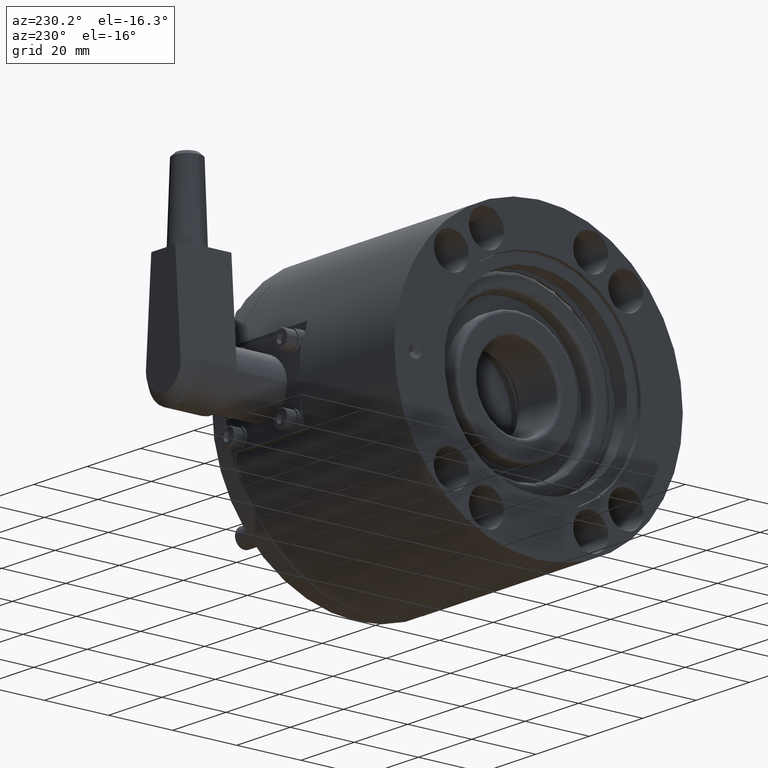
[diagram: clean part render]
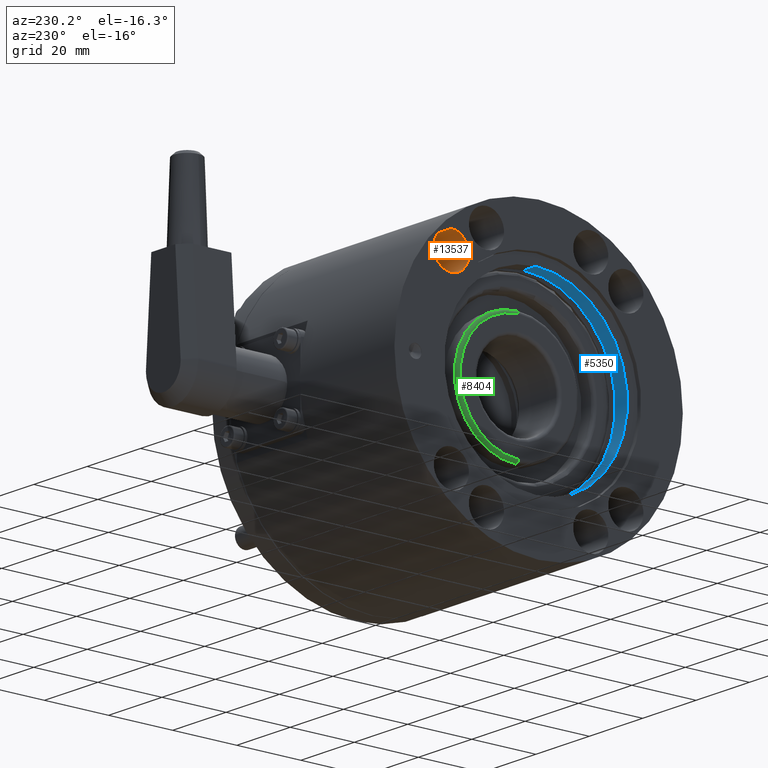
[diagram: same view with three faces highlighted in distinct colors, each labeled with its STEP entity id]
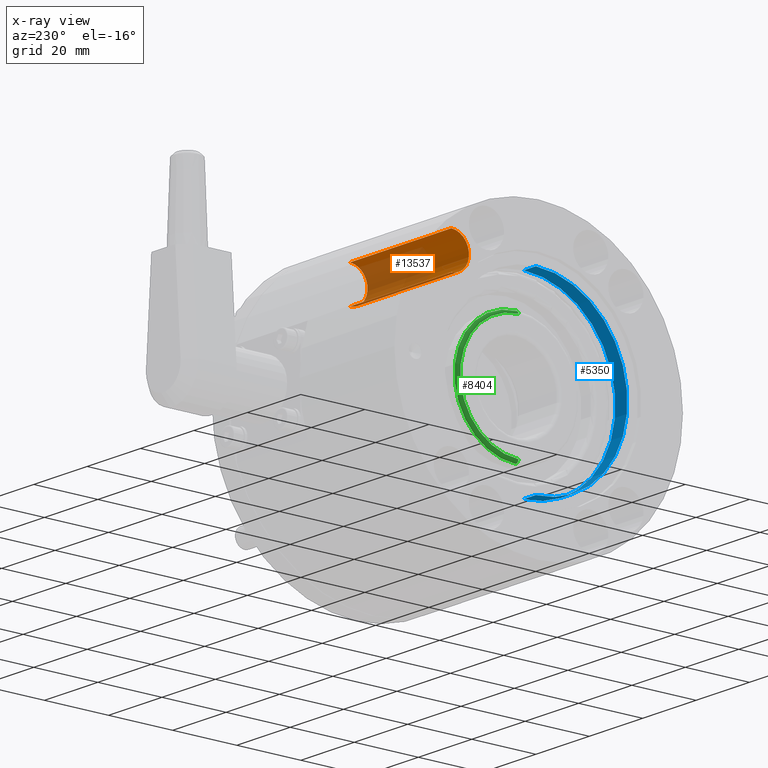
[diagram: x-ray of the same camera — body ghosted, the three highlighted faces saturated]
A machine part, auxiliary view with three faces highlighted in distinct colors.
The next image is the same camera in x-ray (body ghosted, the three faces saturated) — at least one of them is partly hidden behind the body in this view.
Their STEP definitions:

[orange] entity #13537 — the highlighted cylindrical surface (edge-blend (fillet) strip) has radius 5.5 mm, axis along (-1, 0, 0).
#18 = DIRECTION ( 'NONE',  ( 1.000000000000000000, -0.000000000000000000, -0.000000000000000000 ) ) ;
#601 = VERTEX_POINT ( 'NONE', #3628 ) ;
#865 = CARTESIAN_POINT ( 'NONE',  ( 62.00000000000000000, 27.22361107568213967, -27.22361107568202954 ) ) ;
#1127 = VERTEX_POINT ( 'NONE', #9943 ) ;
#1292 = LINE ( 'NONE', #12934, #5470 ) ;
#1693 = CARTESIAN_POINT ( 'NONE',  ( 62.00000000000000000, 27.22361107568213967, -21.72361107568203664 ) ) ;
#2572 = EDGE_CURVE ( 'NONE', #9901, #601, #11810, .T. ) ;
#2991 = ORIENTED_EDGE ( 'NONE', *, *, #2572, .T. ) ;
#3070 = VERTEX_POINT ( 'NONE', #3777 ) ;
#3171 = VECTOR ( 'NONE', #11360, 1000.000000000000000 ) ;
#3316 = AXIS2_PLACEMENT_3D ( 'NONE', #865, #8111, #12506 ) ;
#3628 = CARTESIAN_POINT ( 'NONE',  ( 62.00000000000000000, 27.22361107568213967, -21.72361107568203309 ) ) ;
#3736 = ORIENTED_EDGE ( 'NONE', *, *, #4908, .F. ) ;
#3777 = CARTESIAN_POINT ( 'NONE',  ( 62.00000000000000000, 27.22361107568213967, -32.72361107568202243 ) ) ;
#4350 = CYLINDRICAL_SURFACE ( 'NONE', #10944, 5.499999999999987566 ) ;
#4908 = EDGE_CURVE ( 'NONE', #1127, #3070, #1292, .T. ) ;
#5029 = FACE_OUTER_BOUND ( 'NONE', #5274, .T. ) ;
#5094 = EDGE_CURVE ( 'NONE', #9901, #1127, #10774, .T. ) ;
#5097 = DIRECTION ( 'NONE',  ( 1.000000000000000000, -0.000000000000000000, -0.000000000000000000 ) ) ;
#5274 = EDGE_LOOP ( 'NONE', ( #13551, #2991, #6981, #3736 ) ) ;
#5470 = VECTOR ( 'NONE', #18, 1000.000000000000000 ) ;
#5840 = CARTESIAN_POINT ( 'NONE',  ( 24.00000000000000000, 27.22361107568213967, -27.22361107568202954 ) ) ;
#6082 = DIRECTION ( 'NONE',  ( 0.000000000000000000, 0.000000000000000000, -1.000000000000000000 ) ) ;
#6918 = DIRECTION ( 'NONE',  ( 1.000000000000000000, -0.000000000000000000, -0.000000000000000000 ) ) ;
#6981 = ORIENTED_EDGE ( 'NONE', *, *, #10460, .T. ) ;
#8111 = DIRECTION ( 'NONE',  ( 1.000000000000000000, -0.000000000000000000, -0.000000000000000000 ) ) ;
#9901 = VERTEX_POINT ( 'NONE', #11548 ) ;
#9943 = CARTESIAN_POINT ( 'NONE',  ( 24.00000000000000000, 27.22361107568213967, -32.72361107568201533 ) ) ;
#10054 = DIRECTION ( 'NONE',  ( 0.000000000000000000, 0.000000000000000000, -1.000000000000000000 ) ) ;
#10460 = EDGE_CURVE ( 'NONE', #601, #3070, #12701, .T. ) ;
#10774 = CIRCLE ( 'NONE', #13504, 5.499999999999987566 ) ;
#10944 = AXIS2_PLACEMENT_3D ( 'NONE', #13539, #5097, #6082 ) ;
#11360 = DIRECTION ( 'NONE',  ( 1.000000000000000000, -0.000000000000000000, -0.000000000000000000 ) ) ;
#11548 = CARTESIAN_POINT ( 'NONE',  ( 24.00000000000000000, 27.22361107568213967, -21.72361107568204019 ) ) ;
#11810 = LINE ( 'NONE', #1693, #3171 ) ;
#12506 = DIRECTION ( 'NONE',  ( 0.000000000000000000, 0.000000000000000000, -1.000000000000000000 ) ) ;
#12701 = CIRCLE ( 'NONE', #3316, 5.499999999999994671 ) ;
#12934 = CARTESIAN_POINT ( 'NONE',  ( 62.00000000000000000, 27.22361107568213967, -32.72361107568201533 ) ) ;
#13504 = AXIS2_PLACEMENT_3D ( 'NONE', #5840, #6918, #10054 ) ;
#13537 = ADVANCED_FACE ( 'NONE', ( #5029 ), #4350, .F. ) ;
#13539 = CARTESIAN_POINT ( 'NONE',  ( 62.00000000000000000, 27.22361107568213967, -27.22361107568202954 ) ) ;
#13551 = ORIENTED_EDGE ( 'NONE', *, *, #5094, .F. ) ;

[blue] entity #5350 — the highlighted cylindrical surface (partial cylindrical patch) has radius 28.575 mm, axis along (-1, -0, -0).
#986 = DIRECTION ( 'NONE',  ( -1.000000000000000000, -0.000000000000000000, -0.000000000000000000 ) ) ;
#1442 = ORIENTED_EDGE ( 'NONE', *, *, #11261, .F. ) ;
#1489 = AXIS2_PLACEMENT_3D ( 'NONE', #2039, #12680, #5319 ) ;
#1606 = LINE ( 'NONE', #3303, #11083 ) ;
#1802 = VERTEX_POINT ( 'NONE', #7997 ) ;
#2039 = CARTESIAN_POINT ( 'NONE',  ( -92.84011180044485911, 0.000000000000000000, 0.000000000000000000 ) ) ;
#2283 = DIRECTION ( 'NONE',  ( -1.000000000000000000, -0.000000000000000000, -0.000000000000000000 ) ) ;
#3303 = CARTESIAN_POINT ( 'NONE',  ( -92.84011180044485911, 3.499428228563562065E-15, -28.57499999999999929 ) ) ;
#3394 = VECTOR ( 'NONE', #4452, 1000.000000000000000 ) ;
#3434 = CIRCLE ( 'NONE', #5345, 28.57499999999999929 ) ;
#3523 = CARTESIAN_POINT ( 'NONE',  ( 0.000000000000000000, 0.000000000000000000, 0.000000000000000000 ) ) ;
#3608 = CYLINDRICAL_SURFACE ( 'NONE', #1489, 28.57499999999999929 ) ;
#4040 = ORIENTED_EDGE ( 'NONE', *, *, #8984, .T. ) ;
#4415 = VERTEX_POINT ( 'NONE', #5253 ) ;
#4452 = DIRECTION ( 'NONE',  ( -1.000000000000000000, -0.000000000000000000, -0.000000000000000000 ) ) ;
#4462 = DIRECTION ( 'NONE',  ( 0.000000000000000000, 0.000000000000000000, 1.000000000000000000 ) ) ;
#5128 = ORIENTED_EDGE ( 'NONE', *, *, #5394, .F. ) ;
#5253 = CARTESIAN_POINT ( 'NONE',  ( 4.500000000000003553, 3.499428228563562065E-15, -28.57499999999999929 ) ) ;
#5319 = DIRECTION ( 'NONE',  ( 0.000000000000000000, 0.000000000000000000, 1.000000000000000000 ) ) ;
#5345 = AXIS2_PLACEMENT_3D ( 'NONE', #7277, #986, #10462 ) ;
#5350 = ADVANCED_FACE ( 'NONE', ( #11740 ), #3608, .F. ) ;
#5394 = EDGE_CURVE ( 'NONE', #4415, #1802, #3434, .T. ) ;
#5541 = DIRECTION ( 'NONE',  ( -1.000000000000000000, -0.000000000000000000, -0.000000000000000000 ) ) ;
#6498 = ORIENTED_EDGE ( 'NONE', *, *, #10174, .T. ) ;
#7257 = LINE ( 'NONE', #7705, #3394 ) ;
#7277 = CARTESIAN_POINT ( 'NONE',  ( 4.500000000000003553, 0.000000000000000000, 0.000000000000000000 ) ) ;
#7594 = CARTESIAN_POINT ( 'NONE',  ( 0.000000000000000000, 0.000000000000000000, 28.57499999999999929 ) ) ;
#7705 = CARTESIAN_POINT ( 'NONE',  ( -92.84011180044485911, 0.000000000000000000, 28.57499999999999929 ) ) ;
#7997 = CARTESIAN_POINT ( 'NONE',  ( 4.500000000000003553, 0.000000000000000000, 28.57499999999999929 ) ) ;
#8984 = EDGE_CURVE ( 'NONE', #4415, #13211, #1606, .T. ) ;
#9420 = EDGE_LOOP ( 'NONE', ( #5128, #4040, #6498, #1442 ) ) ;
#9501 = VERTEX_POINT ( 'NONE', #7594 ) ;
#10174 = EDGE_CURVE ( 'NONE', #13211, #9501, #11881, .T. ) ;
#10462 = DIRECTION ( 'NONE',  ( 0.000000000000000000, 0.000000000000000000, 1.000000000000000000 ) ) ;
#11083 = VECTOR ( 'NONE', #2283, 1000.000000000000000 ) ;
#11237 = AXIS2_PLACEMENT_3D ( 'NONE', #3523, #5541, #4462 ) ;
#11261 = EDGE_CURVE ( 'NONE', #1802, #9501, #7257, .T. ) ;
#11740 = FACE_OUTER_BOUND ( 'NONE', #9420, .T. ) ;
#11881 = CIRCLE ( 'NONE', #11237, 28.57499999999999929 ) ;
#12680 = DIRECTION ( 'NONE',  ( -1.000000000000000000, -0.000000000000000000, -0.000000000000000000 ) ) ;
#13039 = CARTESIAN_POINT ( 'NONE',  ( 0.000000000000000000, 3.499428228563562065E-15, -28.57499999999999929 ) ) ;
#13211 = VERTEX_POINT ( 'NONE', #13039 ) ;

[green] entity #8404 — the highlighted toroidal blend (fillet) surface has major radius 18.15 mm and minor (blend) radius 1 mm.
#31 = DIRECTION ( 'NONE',  ( -1.000000000000000000, -0.000000000000000000, -0.000000000000000000 ) ) ;
#345 = CIRCLE ( 'NONE', #11070, 1.000000000000000888 ) ;
#621 = EDGE_CURVE ( 'NONE', #3889, #12585, #4407, .T. ) ;
#925 = CARTESIAN_POINT ( 'NONE',  ( 0.000000000000000000, 0.000000000000000000, -18.14999999999999503 ) ) ;
#1017 = CARTESIAN_POINT ( 'NONE',  ( 1.000000000000000000, 0.000000000000000000, 0.000000000000000000 ) ) ;
#1233 = AXIS2_PLACEMENT_3D ( 'NONE', #1017, #9519, #5256 ) ;
#1797 = CARTESIAN_POINT ( 'NONE',  ( 1.000000000000000000, 0.000000000000000000, -18.14999999999999503 ) ) ;
#1886 = DIRECTION ( 'NONE',  ( 0.000000000000000000, 0.000000000000000000, -1.000000000000000000 ) ) ;
#1895 = CARTESIAN_POINT ( 'NONE',  ( 1.000000000000000000, 2.345198620367181006E-15, 19.14999999999999858 ) ) ;
#2206 = CARTESIAN_POINT ( 'NONE',  ( 0.000000000000000000, 0.000000000000000000, 0.000000000000000000 ) ) ;
#2606 = DIRECTION ( 'NONE',  ( 0.000000000000000000, 0.000000000000000000, -1.000000000000000000 ) ) ;
#2768 = FACE_OUTER_BOUND ( 'NONE', #9854, .T. ) ;
#3110 = VERTEX_POINT ( 'NONE', #1895 ) ;
#3243 = DIRECTION ( 'NONE',  ( 0.000000000000000000, 1.224646799147353454E-16, 1.000000000000000000 ) ) ;
#3320 = EDGE_CURVE ( 'NONE', #13423, #3110, #345, .T. ) ;
#3509 = AXIS2_PLACEMENT_3D ( 'NONE', #2206, #31, #4587 ) ;
#3889 = VERTEX_POINT ( 'NONE', #925 ) ;
#4407 = CIRCLE ( 'NONE', #6376, 1.000000000000000888 ) ;
#4587 = DIRECTION ( 'NONE',  ( 0.000000000000000000, 0.000000000000000000, -1.000000000000000000 ) ) ;
#4650 = CARTESIAN_POINT ( 'NONE',  ( 1.000000000000000000, 0.000000000000000000, -19.14999999999999858 ) ) ;
#4971 = ORIENTED_EDGE ( 'NONE', *, *, #621, .F. ) ;
#5256 = DIRECTION ( 'NONE',  ( 0.000000000000000000, 0.000000000000000000, -1.000000000000000000 ) ) ;
#5510 = DIRECTION ( 'NONE',  ( 0.000000000000000000, 1.000000000000000000, -1.224646799147353207E-16 ) ) ;
#5903 = DIRECTION ( 'NONE',  ( 1.000000000000000000, 0.000000000000000000, 0.000000000000000000 ) ) ;
#6065 = DIRECTION ( 'NONE',  ( 0.000000000000000000, -1.000000000000000000, 0.000000000000000000 ) ) ;
#6086 = EDGE_CURVE ( 'NONE', #12585, #3110, #10422, .T. ) ;
#6376 = AXIS2_PLACEMENT_3D ( 'NONE', #1797, #6065, #1886 ) ;
#8404 = ADVANCED_FACE ( 'NONE', ( #2768 ), #8440, .T. ) ;
#8440 = TOROIDAL_SURFACE ( 'NONE', #11841, 18.14999999999999503, 1.000000000000000000 ) ;
#9519 = DIRECTION ( 'NONE',  ( 1.000000000000000000, 0.000000000000000000, 0.000000000000000000 ) ) ;
#9854 = EDGE_LOOP ( 'NONE', ( #10359, #11530, #13030, #4971 ) ) ;
#10200 = CARTESIAN_POINT ( 'NONE',  ( 1.000000000000000000, 0.000000000000000000, 0.000000000000000000 ) ) ;
#10359 = ORIENTED_EDGE ( 'NONE', *, *, #11108, .F. ) ;
#10383 = CIRCLE ( 'NONE', #3509, 18.14999999999999503 ) ;
#10422 = CIRCLE ( 'NONE', #1233, 19.14999999999999858 ) ;
#10876 = CARTESIAN_POINT ( 'NONE',  ( 1.000000000000000000, 2.222733940452445463E-15, 18.14999999999999503 ) ) ;
#11070 = AXIS2_PLACEMENT_3D ( 'NONE', #10876, #5510, #3243 ) ;
#11108 = EDGE_CURVE ( 'NONE', #13423, #3889, #10383, .T. ) ;
#11530 = ORIENTED_EDGE ( 'NONE', *, *, #3320, .T. ) ;
#11841 = AXIS2_PLACEMENT_3D ( 'NONE', #10200, #5903, #2606 ) ;
#12585 = VERTEX_POINT ( 'NONE', #4650 ) ;
#13030 = ORIENTED_EDGE ( 'NONE', *, *, #6086, .F. ) ;
#13361 = CARTESIAN_POINT ( 'NONE',  ( 0.000000000000000000, 2.283966280409813037E-15, 18.14999999999999503 ) ) ;
#13423 = VERTEX_POINT ( 'NONE', #13361 ) ;